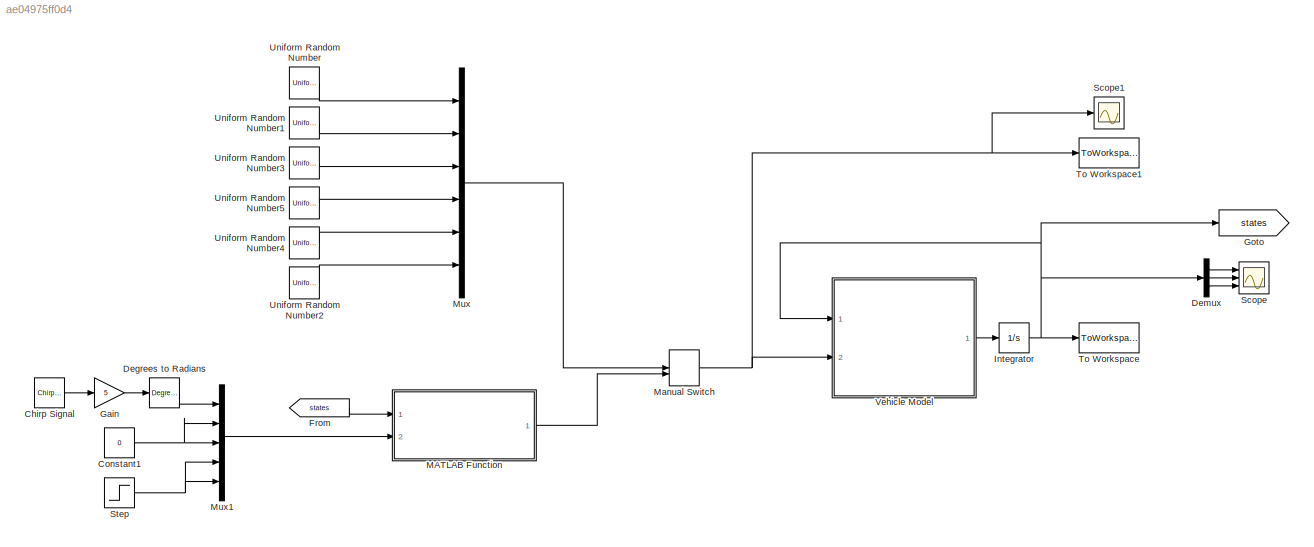
MODEL slx_ae04975ff0d4
KIND model
CONFIG AbsTol = auto
CONFIG EnableMultiTasking = off
CONFIG FixedStep = Ts
CONFIG MaxStep = auto
CONFIG MinStep = auto
CONFIG RelTol = 1e-6
CONFIG SampleTimeConstraint = Unconstrained
CONFIG Solver = FixedStepAuto
CONFIG SolverName = FixedStepAuto
CONFIG StartTime = 0.0
CONFIG StopTime = Tsim
BLOCK [Reference] Chirp Signal  REF=simulink/Sources/Chirp Signal
  Ports = [0, 1]
  SourceBlock = simulink/Sources/Chirp Signal
  SourceProductBaseCode = SL
  SourceProductName = Simulink
  SourceType = chirp
BLOCK [Constant] Constant1
  Value = 0
BLOCK [Reference] Degrees to Radians  REF=simulink_extras/Transformations/Degrees to
Radians
  Ports = [1, 1]
  SourceBlock = simulink_extras/Transformations/Degrees to\nRadians
  SourceProductBaseCode = SL
  SourceProductName = Simulink
  SourceType = DegreesToRadians
BLOCK [Demux] Demux
  DisplayOption = bar
  Outputs = 3
  Ports = [1, 3]
BLOCK [From] From
  GotoTag = states
BLOCK [Gain] Gain
  Gain = 5
  OutDataTypeStr = Inherit: Inherit via internal rule
  ParamDataTypeStr = Inherit: Inherit via internal rule
  SaturateOnIntegerOverflow = off
BLOCK [Goto] Goto
  GotoTag = states
BLOCK [Integrator] Integrator
  InitialCondition = x0
  Ports = [1, 1]
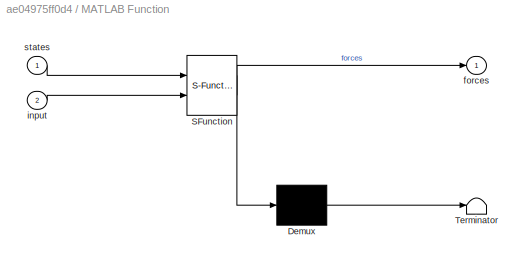
BLOCK [SubSystem] MATLAB Function
  ErrorFcn = Stateflow.Translate.translate
  PermitHierarchicalResolution = ExplicitOnly
  Ports = [2, 1]
  RequestExecContextInheritance = off
  SFBlockType = MATLAB Function
  TreatAsAtomicUnit = on
BLOCK [Demux] MATLAB Function/ Demux 
  Outputs = 1
  Ports = [1, 1]
BLOCK [S-Function] MATLAB Function/ SFunction 
  EnableBusSupport = on
  FunctionName = sf_sfun
  PortCounts = [2 2]
  Ports = [2, 2]
  SFcnIsStateOwnerBlock = off
  SFunctionDeploymentMode = off
  Tag = Stateflow S-Function VehicleSimulation 1
BLOCK [Terminator] MATLAB Function/ Terminator 
BLOCK [Outport] MATLAB Function/forces
  IconDisplay = Port number
BLOCK [Inport] MATLAB Function/input
  IconDisplay = Port number
  Port = 2
BLOCK [Inport] MATLAB Function/states
  IconDisplay = Port number
BLOCK [ManualSwitch] Manual Switch
BLOCK [Mux] Mux
  DisplayOption = bar
  Inputs = 6
  Ports = [6, 1]
BLOCK [Mux] Mux1
  DisplayOption = bar
  Inputs = 5
  Ports = [5, 1]
BLOCK [Scope] Scope
  Floating = off
  NumInputPorts = 3
  Ports = [3]
  ScopeSpecificationString = Simulink.scopes.TimeScopeBlockCfg('CurrentConfiguration', extmgr.ConfigurationSet(extmgr.Configuration('Core','General UI',true),extmgr.Configuration('Core','Source UI',true),extmgr.Configuration('Sources','WiredSimulink',true),extmgr.Configuration('Visuals','Time Domain',true,'SerializedDisplays',{struct('MinYLimReal','7.25802','MaxYLimReal','49.19355','YLabelReal','','MinYLimMag','7.25802','MaxY...<+3038ch>
BLOCK [Scope] Scope1
  Floating = off
  NumInputPorts = 1
  Ports = [1]
  ScopeSpecificationString = Simulink.scopes.TimeScopeBlockCfg('CurrentConfiguration', extmgr.ConfigurationSet(extmgr.Configuration('Core','General UI',true),extmgr.Configuration('Core','Source UI',true),extmgr.Configuration('Sources','WiredSimulink',true,'DataLoggingVariableName','ScopeData1'),extmgr.Configuration('Visuals','Time Domain',true,'SerializedDisplays',{struct('MinYLimReal','-12494.82734','MaxYLimReal','12493.6245...<+1440ch>
BLOCK [Step] Step
  After = 0
  Before = 0.15
  SampleTime = 0
  Time = 3
BLOCK [ToWorkspace] To Workspace
  FixptAsFi = on
  MaxDataPoints = inf
  Ports = [1]
  SampleTime = Ts
  Save2DSignal = 3-D array (concatenate along third dimension)
  VariableName = X
BLOCK [ToWorkspace] To Workspace1
  FixptAsFi = on
  MaxDataPoints = inf
  Ports = [1]
  SampleTime = Ts
  Save2DSignal = 3-D array (concatenate along third dimension)
  VariableName = U
BLOCK [UniformRandomNumber] Uniform Random Number
  Maximum = 10000
  Minimum = -10000
  SampleTime = Ts
  Seed = 5
BLOCK [UniformRandomNumber] Uniform Random Number1
  Maximum = 10000
  Minimum = -10000
  SampleTime = Ts
  Seed = 256
BLOCK [UniformRandomNumber] Uniform Random Number2
  Maximum = 10000
  Minimum = -10000
  SampleTime = Ts
  Seed = 156
BLOCK [UniformRandomNumber] Uniform Random Number3
  Maximum = 10000
  Minimum = -10000
  SampleTime = Ts
  Seed = 210
BLOCK [UniformRandomNumber] Uniform Random Number4
  Maximum = 10000
  Minimum = -10000
  SampleTime = Ts
  Seed = 24546354
BLOCK [UniformRandomNumber] Uniform Random Number5
  Maximum = 10000
  Minimum = -10000
  SampleTime = Ts
  Seed = 555
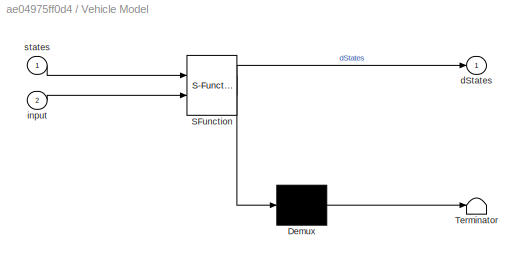
BLOCK [SubSystem] Vehicle Model
  ErrorFcn = Stateflow.Translate.translate
  PermitHierarchicalResolution = ExplicitOnly
  Ports = [2, 1]
  RequestExecContextInheritance = off
  SFBlockType = MATLAB Function
  TreatAsAtomicUnit = on
BLOCK [Demux] Vehicle Model/ Demux 
  Outputs = 1
  Ports = [1, 1]
BLOCK [S-Function] Vehicle Model/ SFunction 
  EnableBusSupport = on
  FunctionName = sf_sfun
  PortCounts = [2 2]
  Ports = [2, 2]
  SFcnIsStateOwnerBlock = off
  SFunctionDeploymentMode = off
  Tag = Stateflow S-Function VehicleSimulation 2
BLOCK [Terminator] Vehicle Model/ Terminator 
BLOCK [Outport] Vehicle Model/dStates
  IconDisplay = Port number
BLOCK [Inport] Vehicle Model/input
  IconDisplay = Port number
  Port = 2
BLOCK [Inport] Vehicle Model/states
  IconDisplay = Port number
LINE Chirp Signal:1 -> Gain:1
NET Constant1:1 -> Mux1:2, Mux1:3
LINE Degrees to Radians:1 -> Mux1:1
LINE Demux:1 -> Scope:1
LINE Demux:2 -> Scope:2
LINE Demux:3 -> Scope:3
LINE From:1 -> MATLAB Function:1
LINE Gain:1 -> Degrees to Radians:1
NET Integrator:1 -> Demux:1, Goto:1, To Workspace:1, Vehicle Model:1
LINE MATLAB Function:1 -> Manual Switch:2
NET Manual Switch:1 -> Scope1:1, To Workspace1:1, Vehicle Model:2
LINE Mux1:1 -> MATLAB Function:2
LINE Mux:1 -> Manual Switch:1
NET Step:1 -> Mux1:4, Mux1:5
LINE Uniform Random Number1:1 -> Mux:2
LINE Uniform Random Number2:1 -> Mux:6
LINE Uniform Random Number3:1 -> Mux:3
LINE Uniform Random Number4:1 -> Mux:5
LINE Uniform Random Number5:1 -> Mux:4
LINE Uniform Random Number:1 -> Mux:1
LINE Vehicle Model:1 -> Integrator:1
note: NET lines group one-source signal fan-out (src -> all destinations, sorted); 1:1 wires keep LINE
CHART MATLAB Function states=1 transitions=1
  STATE_LABEL 'eML_blk_kernel()'
  STATE_LABEL 'SCRIPT:\nfunction forces = ForceGenerator(states, input)\n% VEHICLE MODEL \n%   The function accepts current system states and inputs, and calculates \n%   state derivatives.\n\n% States and input definition\n\nvx = states(1);\nvy = states(2);\nomega = states(3);\n\ndeltaF = input(1);\nsfl = input(2);\nsfr = input(3);\nsrl = input(4);\nsrr = input(5);\n\n% Initialize vehicle parameters\nvehicle = LoadVehicleParamete...<+1416ch>'
CHART Vehicle Model states=1 transitions=1
  STATE_LABEL 'eML_blk_kernel()'
  STATE_LABEL 'SCRIPT:\nfunction dStates = VehicleModel(states, input)\n% VEHICLE MODEL \n%   The function accepts current system states and inputs, and calculates \n%   state derivatives.\n\n% State definition\nvx = states(1);\nvy = states(2);\nomega = states(3);\n\n% Input definition\nFxfl = input(1);\nFyfl = input(2);\nFxfr = input(3);\nFyfr = input(4);\nFxrl = input(5);\nFxrr = input(6);\n\n% Initialize vehicle parameters\nvehi...<+1044ch>'
